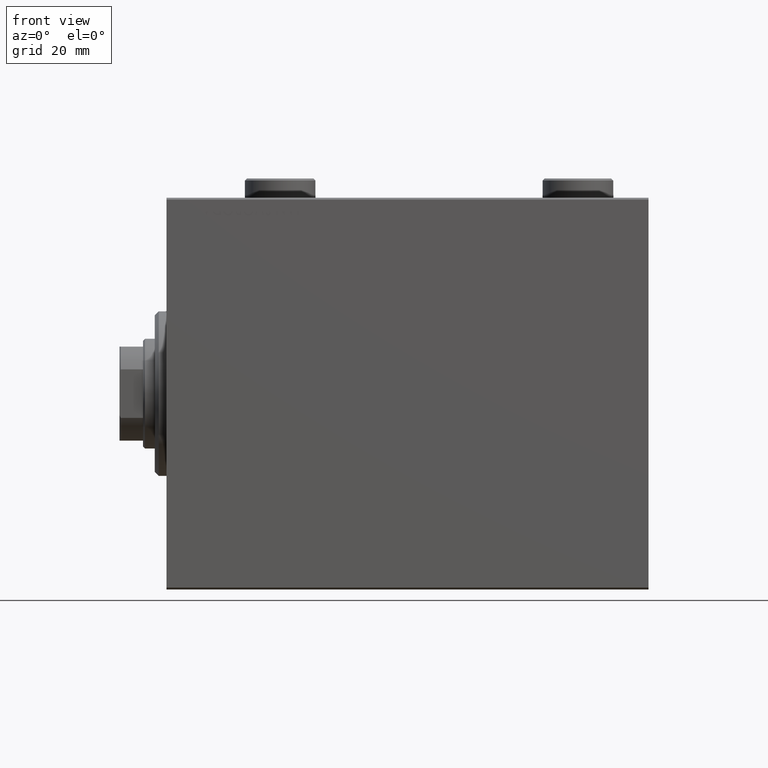
[diagram: clean part render]
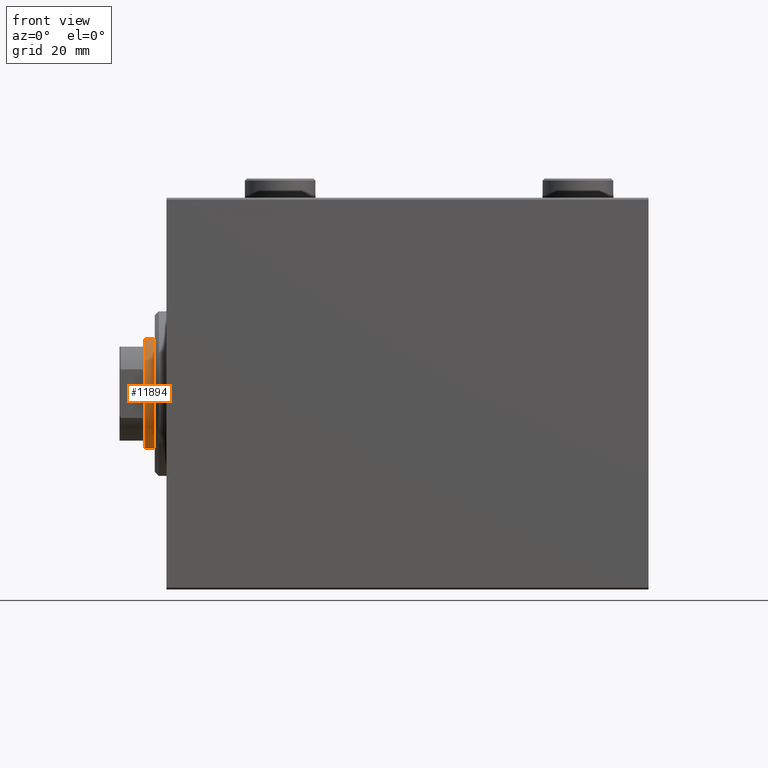
[diagram: same view with one face highlighted and labeled with its STEP entity id]
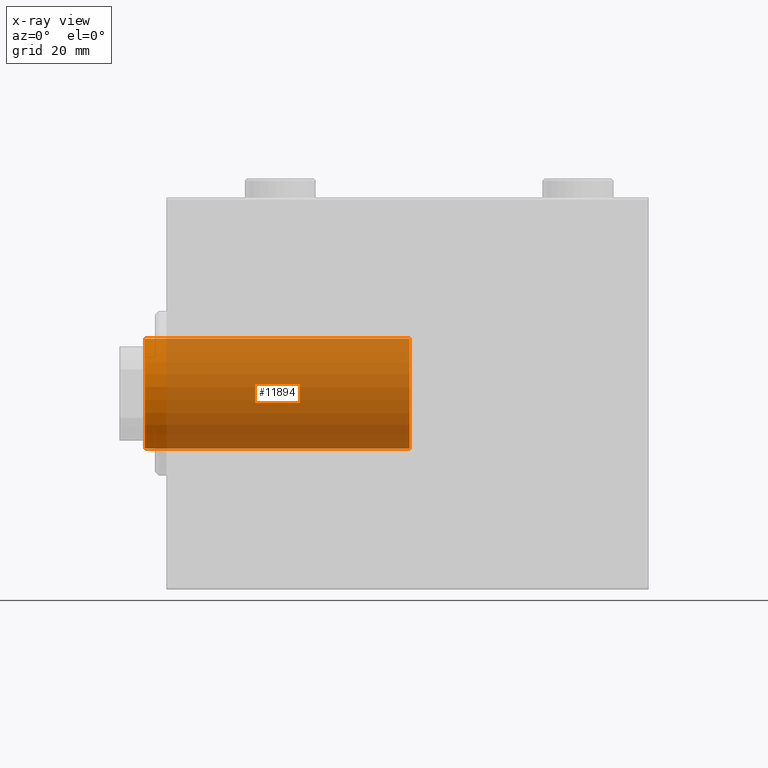
[diagram: x-ray of the same camera — body ghosted, the highlighted face saturated]
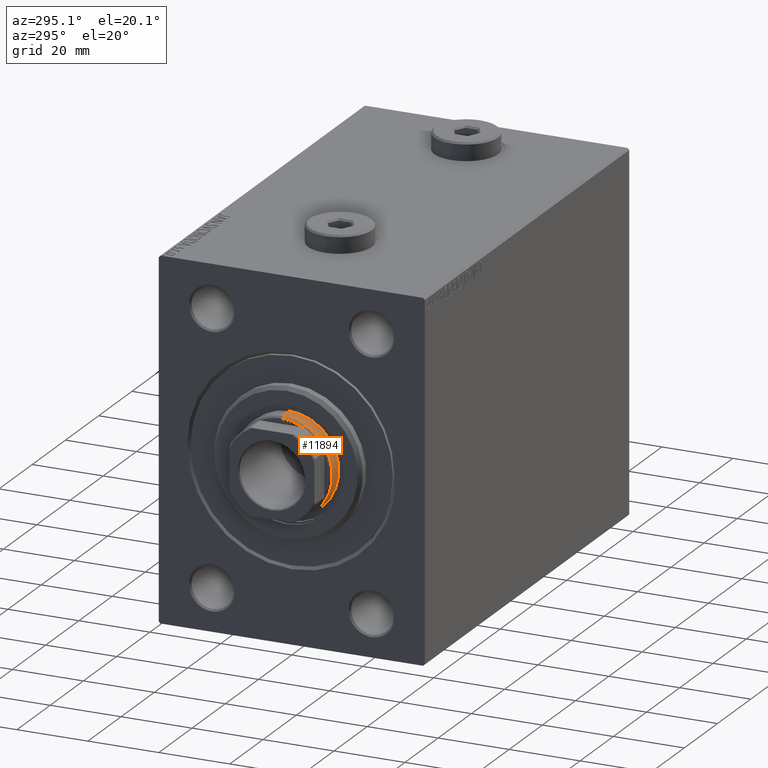
[diagram: same view with one face highlighted and labeled with its STEP entity id]
A machine part, front view. The second image highlights one B-rep face of the part: STEP entity #11894.
The next image is the same camera in x-ray: the body ghosted, the highlighted face saturated — about 92% of this face is hidden behind the body in this view.
A second angle (auxiliary view) of the same face is appended — the face is thin or edge-on in the first view.
In plain terms, the highlighted cylindrical surface (partial cylindrical patch) has radius 14 mm, axis along (1, -0, -0).
Its self-contained STEP definition (entity closure, byte-faithful):
#1987 = DIRECTION ( 'NONE',  ( -0.000000000000000000, -0.000000000000000000, -1.000000000000000000 ) ) ;
#2017 = CARTESIAN_POINT ( 'NONE',  ( 14.00000000000000178, 1.714505518806294835E-15, 114.5000000000000000 ) ) ;
#2223 = VERTEX_POINT ( 'NONE', #14699 ) ;
#2312 = EDGE_LOOP ( 'NONE', ( #26008, #28304, #25512, #39557 ) ) ;
#2329 = EDGE_CURVE ( 'NONE', #10163, #2223, #16900, .T. ) ;
#4053 = DIRECTION ( 'NONE',  ( -0.000000000000000000, -0.000000000000000000, -1.000000000000000000 ) ) ;
#4986 = CYLINDRICAL_SURFACE ( 'NONE', #30490, 14.00000000000000178 ) ;
#6920 = AXIS2_PLACEMENT_3D ( 'NONE', #25839, #15449, #26076 ) ;
#8283 = VECTOR ( 'NONE', #27336, 1000.000000000000000 ) ;
#9581 = DIRECTION ( 'NONE',  ( 0.000000000000000000, 0.000000000000000000, 1.000000000000000000 ) ) ;
#9781 = EDGE_CURVE ( 'NONE', #44277, #2223, #41010, .T. ) ;
#10163 = VERTEX_POINT ( 'NONE', #21486 ) ;
#11894 = ADVANCED_FACE ( 'NONE', ( #44502 ), #4986, .T. ) ;
#13445 = EDGE_CURVE ( 'NONE', #44277, #33949, #23127, .T. ) ;
#14699 = CARTESIAN_POINT ( 'NONE',  ( 14.00000000000000178, 1.714505518806294835E-15, 47.00000000000000000 ) ) ;
#15449 = DIRECTION ( 'NONE',  ( 0.000000000000000000, 0.000000000000000000, -1.000000000000000000 ) ) ;
#16714 = CARTESIAN_POINT ( 'NONE',  ( 14.00000000000000178, 1.714505518806294835E-15, 115.0000000000000000 ) ) ;
#16900 = CIRCLE ( 'NONE', #30916, 14.00000000000000178 ) ;
#18084 = CARTESIAN_POINT ( 'NONE',  ( -14.00000000000000178, 0.000000000000000000, 114.5000000000000000 ) ) ;
#20432 = DIRECTION ( 'NONE',  ( 1.000000000000000000, 0.000000000000000000, 0.000000000000000000 ) ) ;
#21486 = CARTESIAN_POINT ( 'NONE',  ( -14.00000000000000178, 0.000000000000000000, 47.00000000000000000 ) ) ;
#23127 = CIRCLE ( 'NONE', #6920, 14.00000000000000178 ) ;
#25512 = ORIENTED_EDGE ( 'NONE', *, *, #40686, .T. ) ;
#25839 = CARTESIAN_POINT ( 'NONE',  ( 0.000000000000000000, 0.000000000000000000, 114.5000000000000000 ) ) ;
#26008 = ORIENTED_EDGE ( 'NONE', *, *, #9781, .F. ) ;
#26076 = DIRECTION ( 'NONE',  ( 1.000000000000000000, 0.000000000000000000, 0.000000000000000000 ) ) ;
#27336 = DIRECTION ( 'NONE',  ( -0.000000000000000000, -0.000000000000000000, -1.000000000000000000 ) ) ;
#27595 = CARTESIAN_POINT ( 'NONE',  ( 0.000000000000000000, 0.000000000000000000, 47.00000000000000000 ) ) ;
#28079 = CARTESIAN_POINT ( 'NONE',  ( -14.00000000000000178, 0.000000000000000000, 115.0000000000000000 ) ) ;
#28304 = ORIENTED_EDGE ( 'NONE', *, *, #13445, .T. ) ;
#30172 = DIRECTION ( 'NONE',  ( -1.000000000000000000, 0.000000000000000000, 0.000000000000000000 ) ) ;
#30490 = AXIS2_PLACEMENT_3D ( 'NONE', #44049, #1987, #30172 ) ;
#30916 = AXIS2_PLACEMENT_3D ( 'NONE', #27595, #9581, #20432 ) ;
#33949 = VERTEX_POINT ( 'NONE', #18084 ) ;
#35708 = LINE ( 'NONE', #28079, #39218 ) ;
#39218 = VECTOR ( 'NONE', #4053, 1000.000000000000000 ) ;
#39557 = ORIENTED_EDGE ( 'NONE', *, *, #2329, .T. ) ;
#40686 = EDGE_CURVE ( 'NONE', #33949, #10163, #35708, .T. ) ;
#41010 = LINE ( 'NONE', #16714, #8283 ) ;
#44049 = CARTESIAN_POINT ( 'NONE',  ( 0.000000000000000000, 0.000000000000000000, 115.0000000000000000 ) ) ;
#44277 = VERTEX_POINT ( 'NONE', #2017 ) ;
#44502 = FACE_OUTER_BOUND ( 'NONE', #2312, .T. ) ;